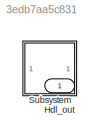
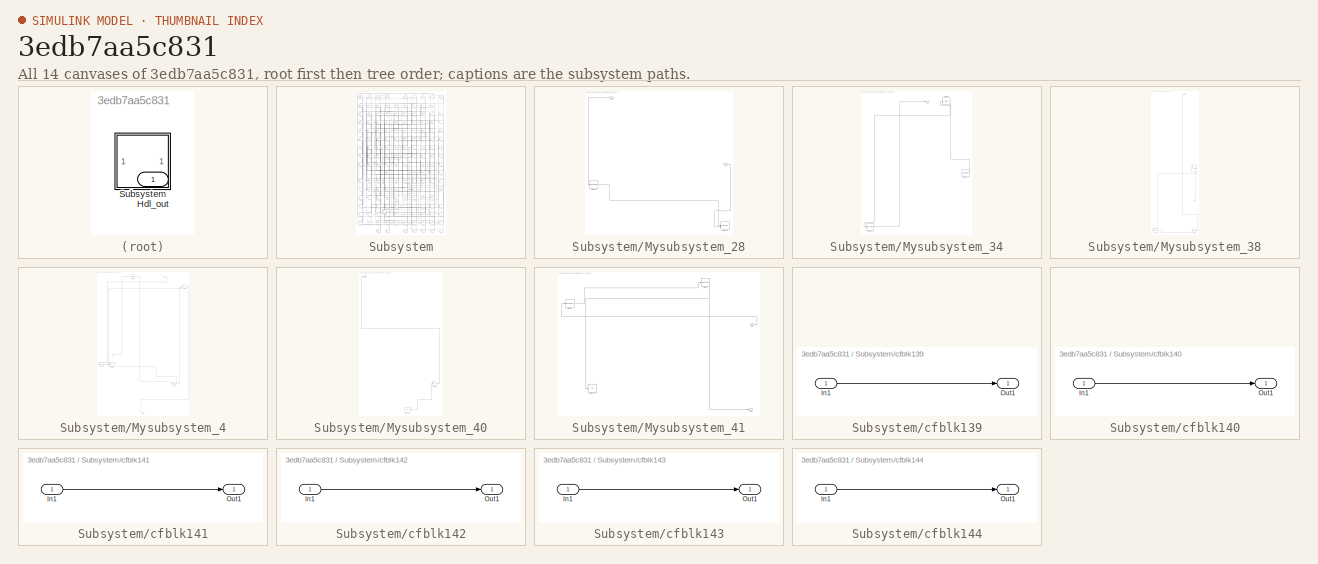
[diagram: thumbnail index - all 14 canvases of the model, root first then tree order]
MODEL slx_3edb7aa5c831
KIND model
CONFIG AbsTol = auto
CONFIG EnableMultiTasking = off
CONFIG FixedStep = auto
CONFIG MaxStep = auto
CONFIG MinStep = auto
CONFIG RelTol = 1e-3
CONFIG SampleTimeConstraint = Unconstrained
CONFIG SolverName = VariableStepAuto
CONFIG StartTime = 0.0
CONFIG StopTime = 10.0
BLOCK [Outport] Hdl_out
  OutDataTypeStr = uint8
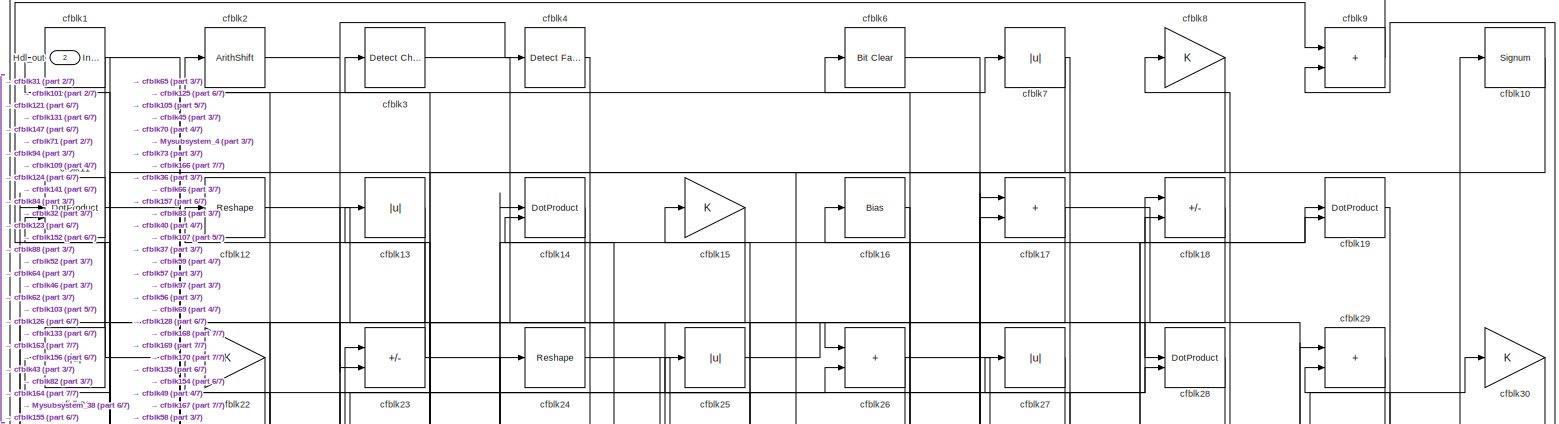
[diagram: Subsystem - part 1/7, full width, top band]
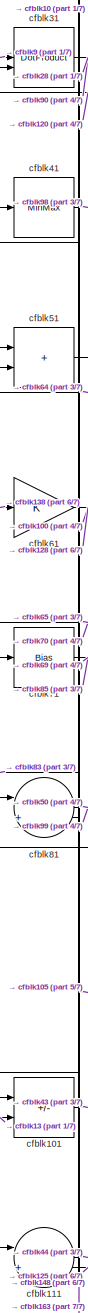
[diagram: Subsystem - part 2/7, middle left region]
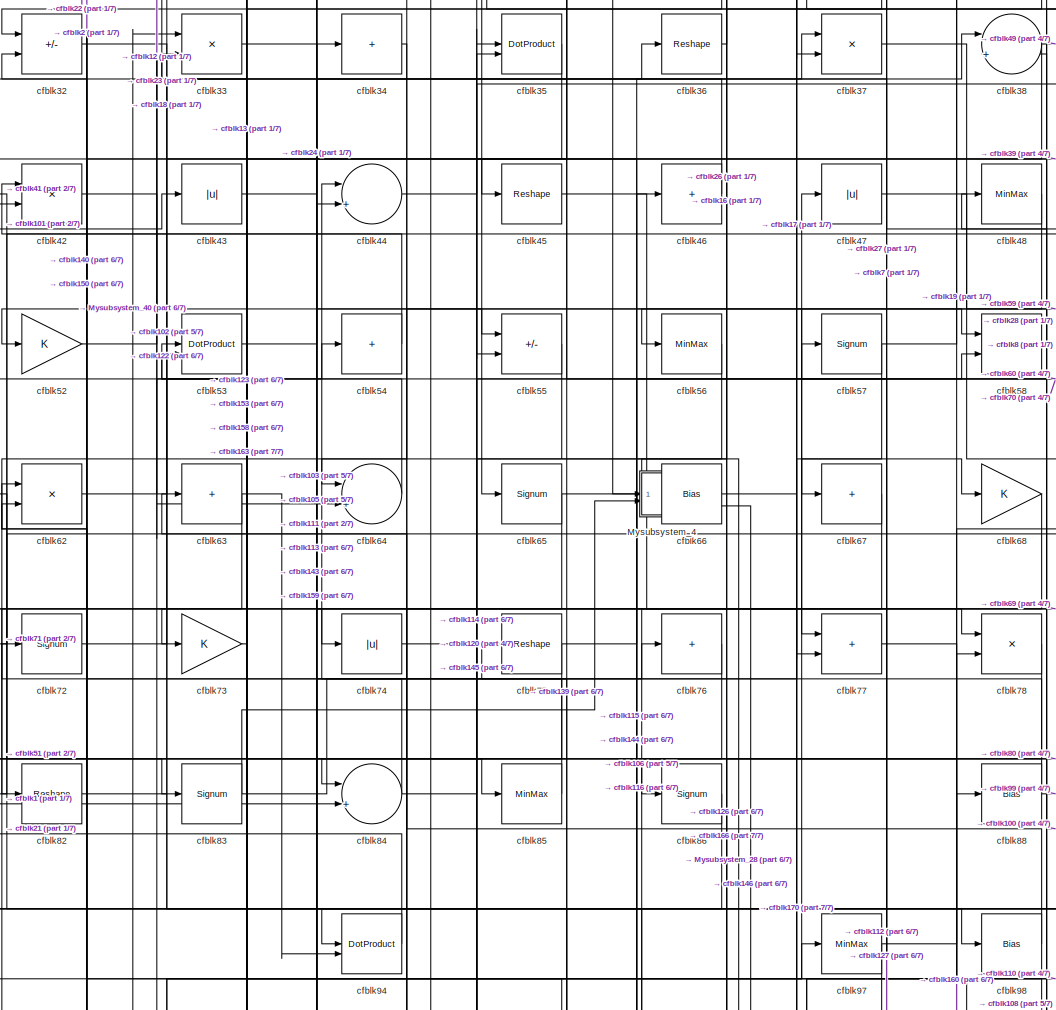
[diagram: Subsystem - part 3/7, central region]
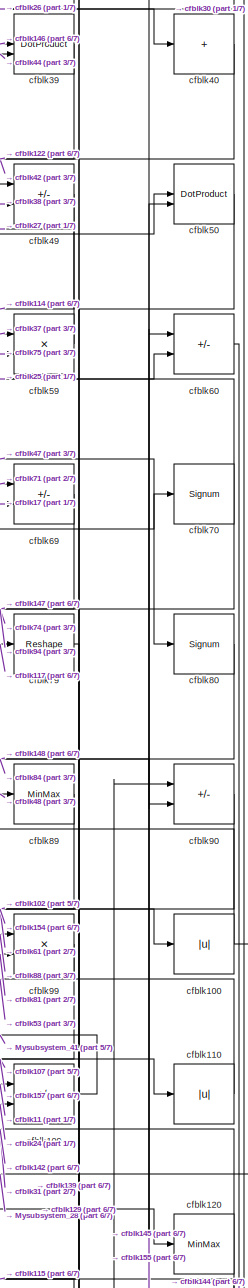
[diagram: Subsystem - part 4/7, middle right region]
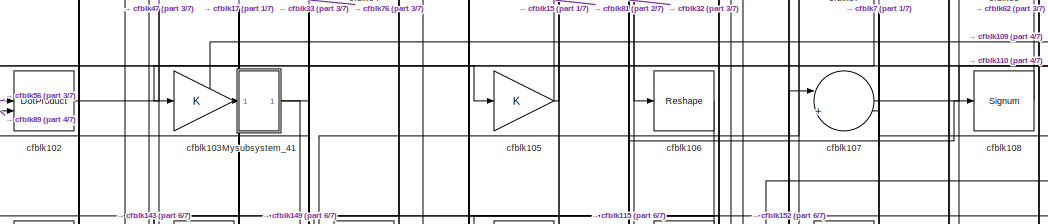
[diagram: Subsystem - part 5/7, central region]
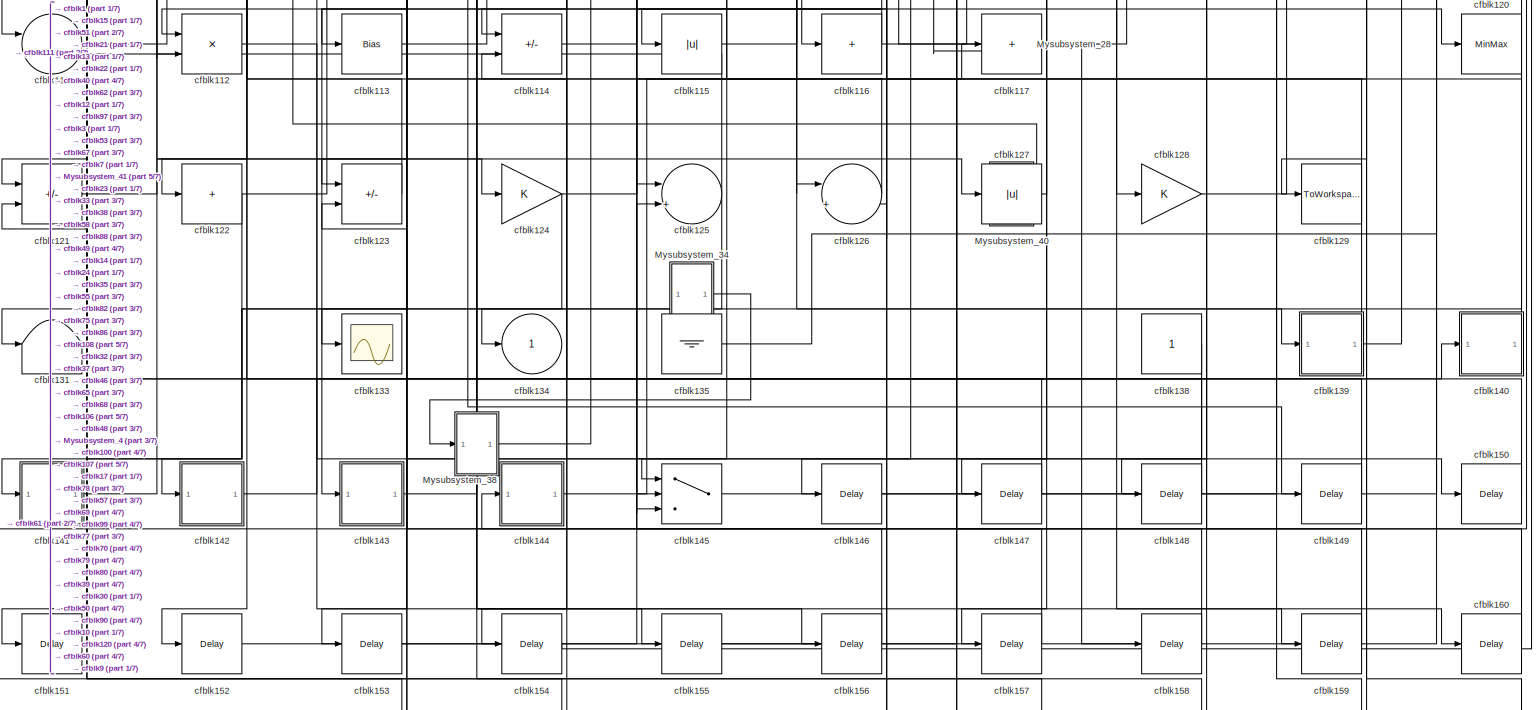
[diagram: Subsystem - part 6/7, full width, bottom band]
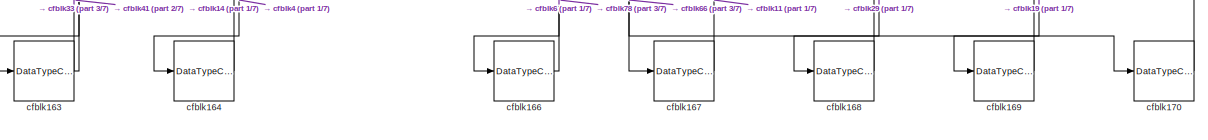
[diagram: Subsystem - part 7/7, full width, bottom band]
BLOCK [SubSystem] Subsystem
BLOCK [Outport] Subsystem/Hdl_out
  OutDataTypeStr = uint8
  Port = 2
BLOCK [SubSystem] Subsystem/Mysubsystem_28
  RTWFcnName = Mysubsystem_28
  RTWFcnNameOpts = User specified
  RTWFileNameOpts = Use function name
  RTWSystemCode = Reusable function
  TreatAsAtomicUnit = on
BLOCK [Inport] Subsystem/Mysubsystem_28/In1
BLOCK [Inport] Subsystem/Mysubsystem_28/In2
  Port = 2
BLOCK [Reshape] Subsystem/Mysubsystem_28/cfblk104
BLOCK [Record] Subsystem/Mysubsystem_28/cfblk130
  CompatibilityTag = XY
  FileSettingsInternal = {"entries":[{"content":{"excelSettings":{"content":{},"type":"Streamout.ExcelSettings"}},"type":"Streamout.FileSettingStorage","uuid":""}],"packageUris":["http:\/\/schema.mathworks.com\/mf0\/streamout_blocks\/R2020a"],"version":"1.0"}
  Layout = [1 1]
  SignalsInternal = {"entries":[{"content":{},"type":"RecordBlkView.InputSignals","uuid":""}],"packageUris":["http:\/\/schema.mathworks.com\/mf0\/streamout_blocks\/R2020a"],"version":"1.0"}
  VisualizationBindings = {"xyplotplugin":{"info":[{"series":[],"subplotID":1}]}}
  st = -1
BLOCK [SubSystem] Subsystem/Mysubsystem_34
  RTWFcnName = Mysubsystem_34
  RTWFcnNameOpts = User specified
  RTWFileNameOpts = Use function name
  RTWSystemCode = Reusable function
  TreatAsAtomicUnit = on
BLOCK [Outport] Subsystem/Mysubsystem_34/Out1
BLOCK [Reference] Subsystem/Mysubsystem_34/cfblk137  REF=hdlsllib/Sources/Counter
Limited
  SourceBlock = hdlsllib/Sources/Counter\nLimited
  SourceType = Counter Limited
BLOCK [DataTypeConversion] Subsystem/Mysubsystem_34/cfblk162
  OutDataTypeStr = uint8
  RndMeth = Floor
  SaturateOnIntegerOverflow = off
BLOCK [Bias] Subsystem/Mysubsystem_34/cfblk96
  Bias = 0.0
  SaturateOnIntegerOverflow = off
BLOCK [SubSystem] Subsystem/Mysubsystem_38
  RTWFcnName = Mysubsystem_38
  RTWFcnNameOpts = User specified
  RTWFileNameOpts = Use function name
  RTWSystemCode = Reusable function
  TreatAsAtomicUnit = on
BLOCK [Inport] Subsystem/Mysubsystem_38/In1
BLOCK [Outport] Subsystem/Mysubsystem_38/Out1
BLOCK [DataTypeConversion] Subsystem/Mysubsystem_38/cfblk161
  OutDataTypeStr = uint8
  RndMeth = Floor
  SaturateOnIntegerOverflow = off
BLOCK [DataTypeConversion] Subsystem/Mysubsystem_38/cfblk165
  OutDataTypeStr = uint8
  RndMeth = Floor
  SaturateOnIntegerOverflow = off
BLOCK [Sum] Subsystem/Mysubsystem_38/cfblk95
  IconShape = rectangular
  Inputs = +
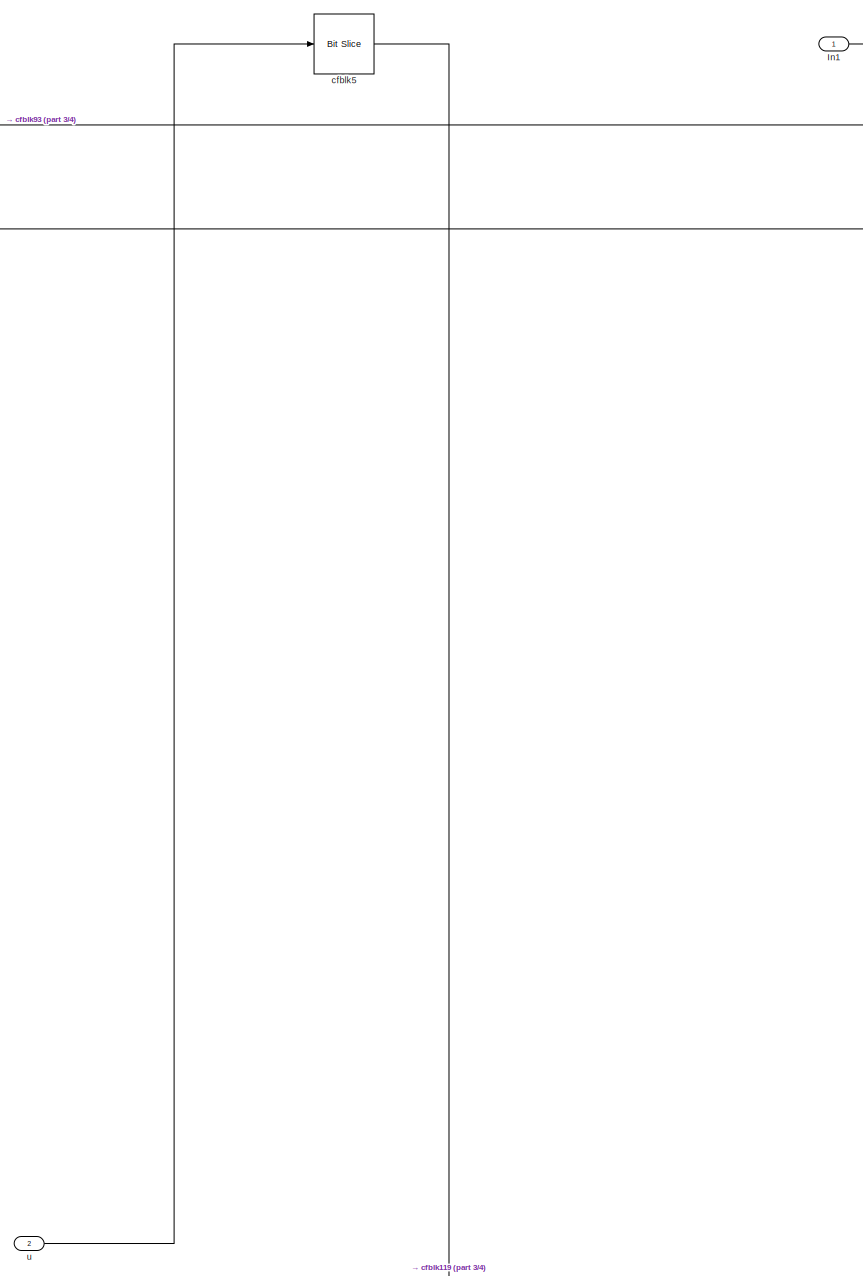
[diagram: Subsystem/Mysubsystem_4 - part 1/4, top center region]
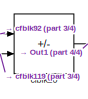
[diagram: Subsystem/Mysubsystem_4 - part 2/4, top right region]
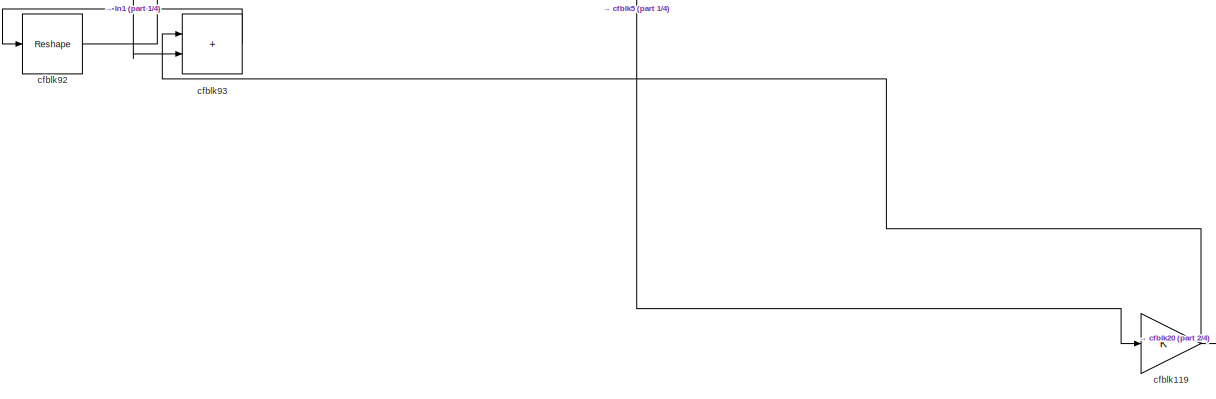
[diagram: Subsystem/Mysubsystem_4 - part 3/4, full width, bottom band]
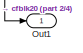
[diagram: Subsystem/Mysubsystem_4 - part 4/4, bottom center region]
BLOCK [SubSystem] Subsystem/Mysubsystem_4
  RTWFcnName = Mysubsystem_4
  RTWFcnNameOpts = User specified
  RTWFileNameOpts = Use function name
  RTWSystemCode = Reusable function
  TreatAsAtomicUnit = on
BLOCK [Inport] Subsystem/Mysubsystem_4/In1
BLOCK [Outport] Subsystem/Mysubsystem_4/Out1
BLOCK [Gain] Subsystem/Mysubsystem_4/cfblk119
BLOCK [Sum] Subsystem/Mysubsystem_4/cfblk20
  IconShape = rectangular
  Inputs = +-
BLOCK [Reference] Subsystem/Mysubsystem_4/cfblk5  REF=hdlsllib/Logic and Bit
Operations/Bit Slice
  SourceBlock = hdlsllib/Logic and Bit\nOperations/Bit Slice
  SourceType = Bit Slice
BLOCK [Reshape] Subsystem/Mysubsystem_4/cfblk92
BLOCK [Sum] Subsystem/Mysubsystem_4/cfblk93
  IconShape = rectangular
BLOCK [Inport] Subsystem/Mysubsystem_4/u
  Port = 2
BLOCK [SubSystem] Subsystem/Mysubsystem_40
  RTWFcnName = Mysubsystem_40
  RTWFcnNameOpts = User specified
  RTWFileNameOpts = Use function name
  RTWSystemCode = Reusable function
  TreatAsAtomicUnit = on
BLOCK [Outport] Subsystem/Mysubsystem_40/Out1
BLOCK [Gain] Subsystem/Mysubsystem_40/cfblk118
BLOCK [Ground] Subsystem/Mysubsystem_40/cfblk136
BLOCK [SubSystem] Subsystem/Mysubsystem_41
  RTWFcnName = Mysubsystem_41
  RTWFcnNameOpts = User specified
  RTWFileNameOpts = Use function name
  RTWSystemCode = Reusable function
  TreatAsAtomicUnit = on
BLOCK [Inport] Subsystem/Mysubsystem_41/In1
BLOCK [Outport] Subsystem/Mysubsystem_41/Out1
BLOCK [Display] Subsystem/Mysubsystem_41/cfblk132
  Decimation = 1
BLOCK [Reshape] Subsystem/Mysubsystem_41/cfblk87
BLOCK [Reshape] Subsystem/Mysubsystem_41/cfblk91
BLOCK [Reference] Subsystem/cfblk1  REF=simulink/Logic and Bit
Operations/Detect
Increase
  LibrarySourceBlock = hdlsllib/Logic and Bit\nOperations/Detect\nIncrease
  SourceBlock = simulink/Logic and Bit\nOperations/Detect\nIncrease
  SourceType = Detect Increase
BLOCK [Signum] Subsystem/cfblk10
BLOCK [Abs] Subsystem/cfblk100
  OutDataTypeStr = uint8
  SaturateOnIntegerOverflow = off
BLOCK [Sum] Subsystem/cfblk101
  IconShape = rectangular
  Inputs = +-
  OutDataTypeStr = uint8
BLOCK [DotProduct] Subsystem/cfblk102
  OutDataTypeStr = uint8
BLOCK [Gain] Subsystem/cfblk103
  OutDataTypeStr = uint8
BLOCK [Gain] Subsystem/cfblk105
  OutDataTypeStr = uint8
BLOCK [Reshape] Subsystem/cfblk106
BLOCK [Sum] Subsystem/cfblk107
  Inputs = |++
  OutDataTypeStr = uint8
BLOCK [Signum] Subsystem/cfblk108
BLOCK [Sum] Subsystem/cfblk109
  IconShape = rectangular
  Inputs = +-
  OutDataTypeStr = uint8
BLOCK [DotProduct] Subsystem/cfblk11
  OutDataTypeStr = uint8
BLOCK [Abs] Subsystem/cfblk110
  OutDataTypeStr = uint8
  SaturateOnIntegerOverflow = off
BLOCK [Sum] Subsystem/cfblk111
  Inputs = |++
  OutDataTypeStr = uint8
BLOCK [Product] Subsystem/cfblk112
  Inputs = */
  OutDataTypeStr = uint8
  RndMeth = Zero
  SaturateOnIntegerOverflow = on
BLOCK [Bias] Subsystem/cfblk113
  Bias = 0.0
  SaturateOnIntegerOverflow = off
BLOCK [Sum] Subsystem/cfblk114
  IconShape = rectangular
  Inputs = +-
  OutDataTypeStr = uint8
BLOCK [Abs] Subsystem/cfblk115
  OutDataTypeStr = uint8
  SaturateOnIntegerOverflow = off
BLOCK [Sum] Subsystem/cfblk116
  IconShape = rectangular
  Inputs = +
  OutDataTypeStr = uint8
BLOCK [Sum] Subsystem/cfblk117
  IconShape = rectangular
  Inputs = +
  OutDataTypeStr = uint8
BLOCK [Reshape] Subsystem/cfblk12
BLOCK [MinMax] Subsystem/cfblk120
  OutDataTypeStr = uint8
BLOCK [Sum] Subsystem/cfblk121
  IconShape = rectangular
  Inputs = +-
  OutDataTypeStr = uint8
BLOCK [Sum] Subsystem/cfblk122
  IconShape = rectangular
  Inputs = +
  OutDataTypeStr = uint8
BLOCK [Sum] Subsystem/cfblk123
  IconShape = rectangular
  Inputs = +-
  OutDataTypeStr = uint8
BLOCK [Gain] Subsystem/cfblk124
  OutDataTypeStr = uint8
BLOCK [Sum] Subsystem/cfblk125
  Inputs = |++
  OutDataTypeStr = uint8
BLOCK [Sum] Subsystem/cfblk126
  Inputs = |++
  OutDataTypeStr = uint8
BLOCK [Abs] Subsystem/cfblk127
  OutDataTypeStr = uint8
  SaturateOnIntegerOverflow = off
BLOCK [Gain] Subsystem/cfblk128
  OutDataTypeStr = uint8
BLOCK [ToWorkspace] Subsystem/cfblk129
  MaxDataPoints = inf
  SampleTime = -1
  SaveFormat = Timeseries
  VariableName = simout
BLOCK [Abs] Subsystem/cfblk13
  OutDataTypeStr = uint8
  SaturateOnIntegerOverflow = off
BLOCK [Terminator] Subsystem/cfblk131
BLOCK [Scope] Subsystem/cfblk133
  Floating = off
  NumInputPorts = 1
  ScopeSpecificationString = Simulink.scopes.TimeScopeBlockCfg('CurrentConfiguration', extmgr.ConfigurationSet(extmgr.Configuration('Core','General UI',true),extmgr.Configuration('Core','Source UI',true),extmgr.Configuration('Sources','WiredSimulink',true,'DataLoggingSaveFormat','Array','DataLoggingLimitDataPoints',true,'DataLoggingDecimation','1'),extmgr.Configuration('Visuals','Time Domain',true,'DisplayPropertyDefaults',st...<+829ch>
BLOCK [Outport] Subsystem/cfblk134
  OutDataTypeStr = uint8
  VectorParamsAs1DForOutWhenUnconnected = off
BLOCK [Ground] Subsystem/cfblk135
BLOCK [Constant] Subsystem/cfblk138
  OutDataTypeStr = uint8
  SampleTime = -1
BLOCK [SubSystem] Subsystem/cfblk139
  LibrarySourceBlock = hdlsllib/Ports &\nSubsystems/Subsystem
BLOCK [Inport] Subsystem/cfblk139/In1
BLOCK [Outport] Subsystem/cfblk139/Out1
BLOCK [DotProduct] Subsystem/cfblk14
  OutDataTypeStr = uint8
BLOCK [SubSystem] Subsystem/cfblk140
  LibrarySourceBlock = hdlsllib/Ports &\nSubsystems/Subsystem
BLOCK [Inport] Subsystem/cfblk140/In1
BLOCK [Outport] Subsystem/cfblk140/Out1
BLOCK [SubSystem] Subsystem/cfblk141
  LibrarySourceBlock = hdlsllib/Ports &\nSubsystems/Subsystem
BLOCK [Inport] Subsystem/cfblk141/In1
BLOCK [Outport] Subsystem/cfblk141/Out1
BLOCK [SubSystem] Subsystem/cfblk142
  LibrarySourceBlock = hdlsllib/Ports &\nSubsystems/Subsystem
BLOCK [Inport] Subsystem/cfblk142/In1
BLOCK [Outport] Subsystem/cfblk142/Out1
BLOCK [SubSystem] Subsystem/cfblk143
  LibrarySourceBlock = hdlsllib/Ports &\nSubsystems/Subsystem
BLOCK [Inport] Subsystem/cfblk143/In1
BLOCK [Outport] Subsystem/cfblk143/Out1
BLOCK [SubSystem] Subsystem/cfblk144
  LibrarySourceBlock = hdlsllib/Ports &\nSubsystems/Subsystem
BLOCK [Inport] Subsystem/cfblk144/In1
BLOCK [Outport] Subsystem/cfblk144/Out1
BLOCK [Switch] Subsystem/cfblk145
  InputSameDT = off
  OutDataTypeStr = uint8
  SaturateOnIntegerOverflow = off
BLOCK [Delay] Subsystem/cfblk146
  InputPortMap = u0
  SampleTime = 1
BLOCK [Delay] Subsystem/cfblk147
  InputPortMap = u0
  SampleTime = 1
BLOCK [Delay] Subsystem/cfblk148
  InputPortMap = u0
  SampleTime = 1
BLOCK [Delay] Subsystem/cfblk149
  InputPortMap = u0
  SampleTime = 1
BLOCK [Gain] Subsystem/cfblk15
  OutDataTypeStr = uint8
BLOCK [Delay] Subsystem/cfblk150
  InputPortMap = u0
  SampleTime = 1
BLOCK [Delay] Subsystem/cfblk151
  InputPortMap = u0
  SampleTime = 1
BLOCK [Delay] Subsystem/cfblk152
  InputPortMap = u0
  SampleTime = 1
BLOCK [Delay] Subsystem/cfblk153
  InputPortMap = u0
  SampleTime = 1
BLOCK [Delay] Subsystem/cfblk154
  InputPortMap = u0
  SampleTime = 1
BLOCK [Delay] Subsystem/cfblk155
  InputPortMap = u0
  SampleTime = 1
BLOCK [Delay] Subsystem/cfblk156
  InputPortMap = u0
  SampleTime = 1
BLOCK [Delay] Subsystem/cfblk157
  InputPortMap = u0
  SampleTime = 1
BLOCK [Delay] Subsystem/cfblk158
  InputPortMap = u0
  SampleTime = 1
BLOCK [Delay] Subsystem/cfblk159
  InputPortMap = u0
  SampleTime = 1
BLOCK [Bias] Subsystem/cfblk16
  Bias = 0.0
  SaturateOnIntegerOverflow = off
BLOCK [Delay] Subsystem/cfblk160
  InputPortMap = u0
  SampleTime = 1
BLOCK [DataTypeConversion] Subsystem/cfblk163
  OutDataTypeStr = uint8
  RndMeth = Floor
  SaturateOnIntegerOverflow = off
BLOCK [DataTypeConversion] Subsystem/cfblk164
  OutDataTypeStr = uint8
  RndMeth = Floor
  SaturateOnIntegerOverflow = off
BLOCK [DataTypeConversion] Subsystem/cfblk166
  OutDataTypeStr = uint8
  RndMeth = Floor
  SaturateOnIntegerOverflow = off
BLOCK [DataTypeConversion] Subsystem/cfblk167
  OutDataTypeStr = uint8
  RndMeth = Floor
  SaturateOnIntegerOverflow = off
BLOCK [DataTypeConversion] Subsystem/cfblk168
  OutDataTypeStr = uint8
  RndMeth = Floor
  SaturateOnIntegerOverflow = off
BLOCK [DataTypeConversion] Subsystem/cfblk169
  OutDataTypeStr = uint8
  RndMeth = Floor
  SaturateOnIntegerOverflow = off
BLOCK [Sum] Subsystem/cfblk17
  IconShape = rectangular
  OutDataTypeStr = uint8
BLOCK [DataTypeConversion] Subsystem/cfblk170
  OutDataTypeStr = uint8
  RndMeth = Floor
  SaturateOnIntegerOverflow = off
BLOCK [Sum] Subsystem/cfblk18
  IconShape = rectangular
  Inputs = +-
  OutDataTypeStr = uint8
BLOCK [DotProduct] Subsystem/cfblk19
  OutDataTypeStr = uint8
BLOCK [ArithShift] Subsystem/cfblk2
  BitShiftNumber = 8
  InputPortMap = u0
BLOCK [Abs] Subsystem/cfblk21
  OutDataTypeStr = uint8
  SaturateOnIntegerOverflow = off
BLOCK [Gain] Subsystem/cfblk22
  OutDataTypeStr = uint8
BLOCK [Sum] Subsystem/cfblk23
  IconShape = rectangular
  Inputs = +-
  OutDataTypeStr = uint8
BLOCK [Reshape] Subsystem/cfblk24
BLOCK [Abs] Subsystem/cfblk25
  OutDataTypeStr = uint8
  SaturateOnIntegerOverflow = off
BLOCK [Sum] Subsystem/cfblk26
  IconShape = rectangular
  OutDataTypeStr = uint8
BLOCK [Abs] Subsystem/cfblk27
  OutDataTypeStr = uint8
  SaturateOnIntegerOverflow = off
BLOCK [DotProduct] Subsystem/cfblk28
  OutDataTypeStr = uint8
BLOCK [Sum] Subsystem/cfblk29
  IconShape = rectangular
  OutDataTypeStr = uint8
BLOCK [Reference] Subsystem/cfblk3  REF=simulink/Logic and Bit
Operations/Detect
Change
  LibrarySourceBlock = hdlsllib/Logic and Bit\nOperations/Detect\nChange
  SourceBlock = simulink/Logic and Bit\nOperations/Detect\nChange
  SourceType = Detect Change
BLOCK [Gain] Subsystem/cfblk30
  OutDataTypeStr = uint8
BLOCK [DotProduct] Subsystem/cfblk31
  OutDataTypeStr = uint8
BLOCK [Sum] Subsystem/cfblk32
  IconShape = rectangular
  Inputs = +-
  OutDataTypeStr = uint8
BLOCK [Product] Subsystem/cfblk33
  Inputs = */
  OutDataTypeStr = uint8
  RndMeth = Zero
  SaturateOnIntegerOverflow = on
BLOCK [Sum] Subsystem/cfblk34
  IconShape = rectangular
  Inputs = +
  OutDataTypeStr = uint8
BLOCK [DotProduct] Subsystem/cfblk35
  OutDataTypeStr = uint8
BLOCK [Reshape] Subsystem/cfblk36
BLOCK [Product] Subsystem/cfblk37
  Inputs = */
  OutDataTypeStr = uint8
  RndMeth = Zero
  SaturateOnIntegerOverflow = on
BLOCK [Sum] Subsystem/cfblk38
  Inputs = |++
  OutDataTypeStr = uint8
BLOCK [DotProduct] Subsystem/cfblk39
  OutDataTypeStr = uint8
BLOCK [Reference] Subsystem/cfblk4  REF=hdlsllib/Logic and Bit
Operations/Detect Fall
Negative
  SourceBlock = hdlsllib/Logic and Bit\nOperations/Detect Fall\nNegative
  SourceType = Detect Fall Negative
BLOCK [Sum] Subsystem/cfblk40
  IconShape = rectangular
  Inputs = +
  OutDataTypeStr = uint8
BLOCK [MinMax] Subsystem/cfblk41
  OutDataTypeStr = uint8
BLOCK [Product] Subsystem/cfblk42
  Inputs = */
  OutDataTypeStr = uint8
  RndMeth = Zero
  SaturateOnIntegerOverflow = on
BLOCK [Abs] Subsystem/cfblk43
  OutDataTypeStr = uint8
  SaturateOnIntegerOverflow = off
BLOCK [Sum] Subsystem/cfblk44
  Inputs = |++
  OutDataTypeStr = uint8
BLOCK [Reshape] Subsystem/cfblk45
BLOCK [Sum] Subsystem/cfblk46
  IconShape = rectangular
  Inputs = +
  OutDataTypeStr = uint8
BLOCK [Abs] Subsystem/cfblk47
  OutDataTypeStr = uint8
  SaturateOnIntegerOverflow = off
BLOCK [MinMax] Subsystem/cfblk48
  OutDataTypeStr = uint8
BLOCK [Sum] Subsystem/cfblk49
  IconShape = rectangular
  Inputs = +-
  OutDataTypeStr = uint8
BLOCK [DotProduct] Subsystem/cfblk50
  OutDataTypeStr = uint8
BLOCK [Sum] Subsystem/cfblk51
  IconShape = rectangular
  OutDataTypeStr = uint8
BLOCK [Gain] Subsystem/cfblk52
  OutDataTypeStr = uint8
BLOCK [DotProduct] Subsystem/cfblk53
  OutDataTypeStr = uint8
BLOCK [Sum] Subsystem/cfblk54
  IconShape = rectangular
  Inputs = +
  OutDataTypeStr = uint8
BLOCK [Sum] Subsystem/cfblk55
  IconShape = rectangular
  Inputs = +-
  OutDataTypeStr = uint8
BLOCK [MinMax] Subsystem/cfblk56
  OutDataTypeStr = uint8
BLOCK [Signum] Subsystem/cfblk57
BLOCK [Sum] Subsystem/cfblk58
  IconShape = rectangular
  OutDataTypeStr = uint8
BLOCK [Product] Subsystem/cfblk59
  Inputs = */
  OutDataTypeStr = uint8
  RndMeth = Zero
  SaturateOnIntegerOverflow = on
BLOCK [Reference] Subsystem/cfblk6  REF=simulink/Logic and Bit
Operations/Bit Clear
  LibrarySourceBlock = hdlsllib/Logic and Bit\nOperations/Bit Clear
  SourceBlock = simulink/Logic and Bit\nOperations/Bit Clear
  SourceType = Bit Clear
BLOCK [Sum] Subsystem/cfblk60
  IconShape = rectangular
  Inputs = +-
  OutDataTypeStr = uint8
BLOCK [Gain] Subsystem/cfblk61
  OutDataTypeStr = uint8
BLOCK [Product] Subsystem/cfblk62
  Inputs = */
  OutDataTypeStr = uint8
  RndMeth = Zero
  SaturateOnIntegerOverflow = on
BLOCK [Sum] Subsystem/cfblk63
  IconShape = rectangular
  Inputs = +
  OutDataTypeStr = uint8
BLOCK [Sum] Subsystem/cfblk64
  Inputs = |++
  OutDataTypeStr = uint8
BLOCK [Signum] Subsystem/cfblk65
BLOCK [Bias] Subsystem/cfblk66
  Bias = 0.0
  SaturateOnIntegerOverflow = off
BLOCK [Sum] Subsystem/cfblk67
  IconShape = rectangular
  Inputs = +
  OutDataTypeStr = uint8
BLOCK [Gain] Subsystem/cfblk68
  OutDataTypeStr = uint8
BLOCK [Sum] Subsystem/cfblk69
  IconShape = rectangular
  Inputs = +-
  OutDataTypeStr = uint8
BLOCK [Abs] Subsystem/cfblk7
  OutDataTypeStr = uint8
  SaturateOnIntegerOverflow = off
BLOCK [Signum] Subsystem/cfblk70
BLOCK [Bias] Subsystem/cfblk71
  Bias = 0.0
  SaturateOnIntegerOverflow = off
BLOCK [Signum] Subsystem/cfblk72
BLOCK [Gain] Subsystem/cfblk73
  OutDataTypeStr = uint8
BLOCK [Abs] Subsystem/cfblk74
  OutDataTypeStr = uint8
  SaturateOnIntegerOverflow = off
BLOCK [Reshape] Subsystem/cfblk75
BLOCK [Sum] Subsystem/cfblk76
  IconShape = rectangular
  Inputs = +
  OutDataTypeStr = uint8
BLOCK [Sum] Subsystem/cfblk77
  IconShape = rectangular
  OutDataTypeStr = uint8
BLOCK [Product] Subsystem/cfblk78
  Inputs = */
  OutDataTypeStr = uint8
  RndMeth = Zero
  SaturateOnIntegerOverflow = on
BLOCK [Reshape] Subsystem/cfblk79
BLOCK [Gain] Subsystem/cfblk8
  OutDataTypeStr = uint8
BLOCK [Signum] Subsystem/cfblk80
BLOCK [Sum] Subsystem/cfblk81
  Inputs = |++
  OutDataTypeStr = uint8
BLOCK [Reshape] Subsystem/cfblk82
BLOCK [Signum] Subsystem/cfblk83
BLOCK [Sum] Subsystem/cfblk84
  Inputs = |++
  OutDataTypeStr = uint8
BLOCK [MinMax] Subsystem/cfblk85
  OutDataTypeStr = uint8
BLOCK [Signum] Subsystem/cfblk86
BLOCK [Bias] Subsystem/cfblk88
  Bias = 0.0
  SaturateOnIntegerOverflow = off
BLOCK [MinMax] Subsystem/cfblk89
  OutDataTypeStr = uint8
BLOCK [Sum] Subsystem/cfblk9
  IconShape = rectangular
  OutDataTypeStr = uint8
BLOCK [Sum] Subsystem/cfblk90
  IconShape = rectangular
  Inputs = +-
  OutDataTypeStr = uint8
BLOCK [DotProduct] Subsystem/cfblk94
  OutDataTypeStr = uint8
BLOCK [MinMax] Subsystem/cfblk97
  OutDataTypeStr = uint8
BLOCK [Bias] Subsystem/cfblk98
  Bias = 0.0
  SaturateOnIntegerOverflow = off
BLOCK [Product] Subsystem/cfblk99
  Inputs = */
  OutDataTypeStr = uint8
  RndMeth = Zero
  SaturateOnIntegerOverflow = on
LINE Subsystem/Mysubsystem_28/In1:1 -> Subsystem/Mysubsystem_28/cfblk104:1
LINE Subsystem/Mysubsystem_28/In2:1 -> Subsystem/Mysubsystem_28/cfblk130:2
LINE Subsystem/Mysubsystem_28/cfblk104:1 -> Subsystem/Mysubsystem_28/cfblk130:1
LINE Subsystem/Mysubsystem_34/cfblk137:1 -> Subsystem/Mysubsystem_34/cfblk96:1
LINE Subsystem/Mysubsystem_34/cfblk162:1 -> Subsystem/Mysubsystem_34/Out1:1
LINE Subsystem/Mysubsystem_34/cfblk96:1 -> Subsystem/Mysubsystem_34/cfblk162:1
LINE Subsystem/Mysubsystem_34:1 -> Subsystem/Mysubsystem_38:1
LINE Subsystem/Mysubsystem_38/In1:1 -> Subsystem/Mysubsystem_38/cfblk95:1
LINE Subsystem/Mysubsystem_38/cfblk161:1 -> Subsystem/Mysubsystem_38/cfblk165:1
LINE Subsystem/Mysubsystem_38/cfblk165:1 -> Subsystem/Mysubsystem_38/Out1:1
LINE Subsystem/Mysubsystem_38/cfblk95:1 -> Subsystem/Mysubsystem_38/cfblk161:1
LINE Subsystem/Mysubsystem_38:1 -> Subsystem/cfblk14:2
LINE Subsystem/Mysubsystem_4/In1:1 -> Subsystem/Mysubsystem_4/cfblk93:2
NET Subsystem/Mysubsystem_4/cfblk119:1 -> Subsystem/Mysubsystem_4/cfblk20:2, Subsystem/Mysubsystem_4/cfblk93:1
LINE Subsystem/Mysubsystem_4/cfblk20:1 -> Subsystem/Mysubsystem_4/Out1:1
LINE Subsystem/Mysubsystem_4/cfblk5:1 -> Subsystem/Mysubsystem_4/cfblk119:1
LINE Subsystem/Mysubsystem_4/cfblk92:1 -> Subsystem/Mysubsystem_4/cfblk20:1
LINE Subsystem/Mysubsystem_4/cfblk93:1 -> Subsystem/Mysubsystem_4/cfblk92:1
LINE Subsystem/Mysubsystem_4/u:1 -> Subsystem/Mysubsystem_4/cfblk5:1
LINE Subsystem/Mysubsystem_40/cfblk118:1 -> Subsystem/Mysubsystem_40/Out1:1
LINE Subsystem/Mysubsystem_40/cfblk136:1 -> Subsystem/Mysubsystem_40/cfblk118:1
LINE Subsystem/Mysubsystem_40:1 -> Subsystem/cfblk33:1
LINE Subsystem/Mysubsystem_41/In1:1 -> Subsystem/Mysubsystem_41/cfblk91:1
NET Subsystem/Mysubsystem_41/cfblk87:1 -> Subsystem/Mysubsystem_41/Out1:1, Subsystem/Mysubsystem_41/cfblk132:1
LINE Subsystem/Mysubsystem_41/cfblk91:1 -> Subsystem/Mysubsystem_41/cfblk87:1
LINE Subsystem/Mysubsystem_41:1 -> Subsystem/cfblk149:1
LINE Subsystem/Mysubsystem_4:1 -> Subsystem/cfblk146:1
NET Subsystem/cfblk100:1 -> Subsystem/Mysubsystem_28:2, Subsystem/cfblk48:1, Subsystem/cfblk89:1
LINE Subsystem/cfblk101:1 -> Subsystem/cfblk43:1
LINE Subsystem/cfblk102:1 -> Subsystem/cfblk47:1
LINE Subsystem/cfblk103:1 -> Subsystem/cfblk76:1
NET Subsystem/cfblk105:1 -> Subsystem/cfblk15:1, Subsystem/cfblk81:1
LINE Subsystem/cfblk106:1 -> Subsystem/cfblk143:1
LINE Subsystem/cfblk107:1 -> Subsystem/cfblk110:1
LINE Subsystem/cfblk108:1 -> Subsystem/cfblk62:2
LINE Subsystem/cfblk109:1 -> Subsystem/Mysubsystem_41:1
LINE Subsystem/cfblk10:1 -> Subsystem/cfblk71:1
LINE Subsystem/cfblk110:1 -> Subsystem/cfblk53:1
LINE Subsystem/cfblk111:1 -> Subsystem/cfblk44:2
LINE Subsystem/cfblk112:1 -> Subsystem/cfblk150:1
NET Subsystem/cfblk113:1 -> Subsystem/cfblk58:2, Subsystem/cfblk88:1
LINE Subsystem/cfblk114:1 -> Subsystem/cfblk35:2
NET Subsystem/cfblk115:1 -> Subsystem/cfblk108:1, Subsystem/cfblk37:1
NET Subsystem/cfblk116:1 -> Subsystem/cfblk112:1, Subsystem/cfblk78:2
NET Subsystem/cfblk117:1 -> Subsystem/cfblk158:1, Subsystem/cfblk70:1, Subsystem/cfblk79:1
LINE Subsystem/cfblk11:1 -> Subsystem/cfblk109:1
NET Subsystem/cfblk120:1 -> Subsystem/cfblk142:1, Subsystem/cfblk31:2
LINE Subsystem/cfblk121:1 -> Subsystem/cfblk127:1
NET Subsystem/cfblk122:1 -> Subsystem/cfblk151:1, Subsystem/cfblk97:1
LINE Subsystem/cfblk123:1 -> Subsystem/cfblk22:1
NET Subsystem/cfblk124:1 -> Subsystem/cfblk117:1, Subsystem/cfblk134:1
NET Subsystem/cfblk125:1 -> Subsystem/cfblk111:2, Subsystem/cfblk141:1
LINE Subsystem/cfblk126:1 -> Subsystem/cfblk3:1
LINE Subsystem/cfblk127:1 -> Subsystem/cfblk57:1
LINE Subsystem/cfblk128:1 -> Subsystem/cfblk30:1
NET Subsystem/cfblk12:1 -> Subsystem/cfblk155:1, Subsystem/cfblk65:1
LINE Subsystem/cfblk135:1 -> Subsystem/cfblk10:1
LINE Subsystem/cfblk138:1 -> Subsystem/cfblk61:1
LINE Subsystem/cfblk139/In1:1 -> Subsystem/cfblk139/Out1:1
NET Subsystem/cfblk139:1 -> Subsystem/cfblk75:1, Subsystem/cfblk90:1
NET Subsystem/cfblk13:1 -> Subsystem/cfblk101:2, Subsystem/cfblk152:1
LINE Subsystem/cfblk140/In1:1 -> Subsystem/cfblk140/Out1:1
LINE Subsystem/cfblk140:1 -> Subsystem/cfblk62:1
LINE Subsystem/cfblk141/In1:1 -> Subsystem/cfblk141/Out1:1
LINE Subsystem/cfblk141:1 -> Subsystem/cfblk7:1
LINE Subsystem/cfblk142/In1:1 -> Subsystem/cfblk142/Out1:1
LINE Subsystem/cfblk142:1 -> Subsystem/cfblk140:1
LINE Subsystem/cfblk143/In1:1 -> Subsystem/cfblk143/Out1:1
LINE Subsystem/cfblk143:1 -> Subsystem/cfblk38:1
LINE Subsystem/cfblk144/In1:1 -> Subsystem/cfblk144/Out1:1
LINE Subsystem/cfblk144:1 -> Subsystem/cfblk46:1
LINE Subsystem/cfblk145:1 -> Subsystem/cfblk50:2
LINE Subsystem/cfblk146:1 -> Subsystem/cfblk39:1
LINE Subsystem/cfblk147:1 -> Subsystem/cfblk1:1
LINE Subsystem/cfblk148:1 -> Subsystem/cfblk51:2
LINE Subsystem/cfblk149:1 -> Subsystem/cfblk114:2
LINE Subsystem/cfblk14:1 -> Subsystem/cfblk163:1
LINE Subsystem/cfblk150:1 -> Subsystem/cfblk32:2
LINE Subsystem/cfblk151:1 -> Subsystem/cfblk121:2
LINE Subsystem/cfblk152:1 -> Subsystem/cfblk107:1
LINE Subsystem/cfblk153:1 -> Subsystem/cfblk125:2
LINE Subsystem/cfblk154:1 -> Subsystem/cfblk9:2
LINE Subsystem/cfblk155:1 -> Subsystem/cfblk60:1
LINE Subsystem/cfblk156:1 -> Subsystem/cfblk123:2
LINE Subsystem/cfblk157:1 -> Subsystem/cfblk17:1
LINE Subsystem/cfblk158:1 -> Subsystem/cfblk53:2
LINE Subsystem/cfblk159:1 -> Subsystem/cfblk38:2
NET Subsystem/cfblk15:1 -> Subsystem/cfblk131:1, Subsystem/cfblk23:2
LINE Subsystem/cfblk160:1 -> Subsystem/cfblk35:1
NET Subsystem/cfblk163:1 -> Subsystem/cfblk33:2, Subsystem/cfblk41:1
LINE Subsystem/cfblk164:1 -> Subsystem/cfblk14:1
LINE Subsystem/cfblk166:1 -> Subsystem/cfblk6:1
LINE Subsystem/cfblk167:1 -> Subsystem/cfblk11:2
LINE Subsystem/cfblk168:1 -> Subsystem/cfblk11:1
LINE Subsystem/cfblk169:1 -> Subsystem/cfblk29:1
LINE Subsystem/cfblk16:1 -> Subsystem/cfblk66:1
LINE Subsystem/cfblk170:1 -> Subsystem/cfblk29:2
NET Subsystem/cfblk17:1 -> Subsystem/cfblk103:1, Subsystem/cfblk69:2
LINE Subsystem/cfblk18:1 -> Subsystem/cfblk45:1
LINE Subsystem/cfblk19:1 -> Subsystem/cfblk169:1
NET Subsystem/cfblk1:1 -> Subsystem/cfblk121:1, Subsystem/cfblk84:2
NET Subsystem/cfblk21:1 -> Subsystem/Hdl_out:1, Subsystem/cfblk124:1, Subsystem/cfblk9:1
LINE Subsystem/cfblk22:1 -> Subsystem/cfblk32:1
NET Subsystem/cfblk23:1 -> Subsystem/cfblk12:1, Subsystem/cfblk156:1
NET Subsystem/cfblk24:1 -> Subsystem/cfblk109:2, Subsystem/cfblk125:1
LINE Subsystem/cfblk25:1 -> Subsystem/cfblk28:1
NET Subsystem/cfblk26:1 -> Subsystem/cfblk40:1, Subsystem/cfblk73:1
LINE Subsystem/cfblk27:1 -> Subsystem/cfblk52:1
LINE Subsystem/cfblk28:1 -> Subsystem/cfblk56:1
LINE Subsystem/cfblk29:1 -> Subsystem/cfblk168:1
NET Subsystem/cfblk2:1 -> Subsystem/cfblk4:1, Subsystem/cfblk64:2
LINE Subsystem/cfblk30:1 -> Subsystem/cfblk49:1
NET Subsystem/cfblk31:1 -> Subsystem/cfblk28:2, Subsystem/cfblk90:2
NET Subsystem/cfblk32:1 -> Subsystem/cfblk106:1, Subsystem/cfblk126:1
NET Subsystem/cfblk33:1 -> Subsystem/cfblk105:1, Subsystem/cfblk159:1, Subsystem/cfblk55:1, Subsystem/cfblk77:2
LINE Subsystem/cfblk34:1 -> Subsystem/cfblk64:1
LINE Subsystem/cfblk35:1 -> Subsystem/cfblk113:1
LINE Subsystem/cfblk36:1 -> Subsystem/cfblk16:1
LINE Subsystem/cfblk37:1 -> Subsystem/cfblk59:1
NET Subsystem/cfblk38:1 -> Subsystem/cfblk49:2, Subsystem/cfblk55:2
LINE Subsystem/cfblk39:1 -> Subsystem/cfblk42:2
LINE Subsystem/cfblk3:1 -> Subsystem/cfblk26:1
LINE Subsystem/cfblk40:1 -> Subsystem/cfblk122:1
LINE Subsystem/cfblk41:1 -> Subsystem/cfblk98:1
LINE Subsystem/cfblk42:1 -> Subsystem/cfblk58:1
LINE Subsystem/cfblk43:1 -> Subsystem/cfblk18:2
LINE Subsystem/cfblk44:1 -> Subsystem/cfblk39:2
LINE Subsystem/cfblk45:1 -> Subsystem/cfblk78:1
LINE Subsystem/cfblk46:1 -> Subsystem/cfblk23:1
LINE Subsystem/cfblk47:1 -> Subsystem/cfblk80:1
NET Subsystem/cfblk48:1 -> Subsystem/cfblk126:2, Subsystem/cfblk77:1
LINE Subsystem/cfblk49:1 -> Subsystem/cfblk114:1
LINE Subsystem/cfblk4:1 -> Subsystem/cfblk164:1
LINE Subsystem/cfblk50:1 -> Subsystem/cfblk115:1
NET Subsystem/cfblk51:1 -> Subsystem/cfblk111:1, Subsystem/cfblk83:1
LINE Subsystem/cfblk52:1 -> Subsystem/cfblk26:2
LINE Subsystem/cfblk53:1 -> Subsystem/cfblk34:1
LINE Subsystem/cfblk54:1 -> Subsystem/cfblk42:1
NET Subsystem/cfblk55:1 -> Subsystem/Mysubsystem_28:1, Subsystem/cfblk145:2
LINE Subsystem/cfblk56:1 -> Subsystem/cfblk102:1
NET Subsystem/cfblk57:1 -> Subsystem/cfblk19:2, Subsystem/cfblk67:1
LINE Subsystem/cfblk58:1 -> Subsystem/cfblk8:1
LINE Subsystem/cfblk59:1 -> Subsystem/cfblk27:1
LINE Subsystem/cfblk60:1 -> Subsystem/cfblk144:1
NET Subsystem/cfblk61:1 -> Subsystem/cfblk100:1, Subsystem/cfblk128:1
NET Subsystem/cfblk62:1 -> Subsystem/cfblk18:1, Subsystem/cfblk54:1
NET Subsystem/cfblk63:1 -> Subsystem/cfblk82:1, Subsystem/cfblk94:2
LINE Subsystem/cfblk64:1 -> Subsystem/cfblk51:1
NET Subsystem/cfblk65:1 -> Subsystem/cfblk101:1, Subsystem/cfblk139:1
NET Subsystem/cfblk66:1 -> Subsystem/cfblk170:1, Subsystem/cfblk68:1
LINE Subsystem/cfblk67:1 -> Subsystem/cfblk123:1
LINE Subsystem/cfblk68:1 -> Subsystem/cfblk116:1
NET Subsystem/cfblk69:1 -> Subsystem/cfblk147:1, Subsystem/cfblk94:1
LINE Subsystem/cfblk6:1 -> Subsystem/cfblk167:1
NET Subsystem/cfblk70:1 -> Subsystem/cfblk25:1, Subsystem/cfblk74:1, Subsystem/cfblk81:2
NET Subsystem/cfblk71:1 -> Subsystem/cfblk69:1, Subsystem/cfblk85:1
LINE Subsystem/cfblk72:1 -> Subsystem/cfblk36:1
LINE Subsystem/cfblk73:1 -> Subsystem/cfblk13:1
LINE Subsystem/cfblk74:1 -> Subsystem/cfblk120:1
NET Subsystem/cfblk75:1 -> Subsystem/cfblk153:1, Subsystem/cfblk59:2
LINE Subsystem/cfblk76:1 -> Subsystem/cfblk86:1
LINE Subsystem/cfblk77:1 -> Subsystem/cfblk160:1
LINE Subsystem/cfblk78:1 -> Subsystem/cfblk166:1
LINE Subsystem/cfblk79:1 -> Subsystem/cfblk129:1
NET Subsystem/cfblk7:1 -> Subsystem/cfblk107:2, Subsystem/cfblk133:1, Subsystem/cfblk37:2
NET Subsystem/cfblk80:1 -> Subsystem/cfblk148:1, Subsystem/cfblk84:1
NET Subsystem/cfblk81:1 -> Subsystem/cfblk50:1, Subsystem/cfblk99:2
NET Subsystem/cfblk82:1 -> Subsystem/cfblk145:3, Subsystem/cfblk24:1
NET Subsystem/cfblk83:1 -> Subsystem/Mysubsystem_4:2, Subsystem/cfblk17:2
NET Subsystem/cfblk84:1 -> Subsystem/cfblk60:2, Subsystem/cfblk72:1
LINE Subsystem/cfblk85:1 -> Subsystem/cfblk44:1
LINE Subsystem/cfblk86:1 -> Subsystem/cfblk145:1
NET Subsystem/cfblk88:1 -> Subsystem/cfblk2:1, Subsystem/cfblk99:1
LINE Subsystem/cfblk89:1 -> Subsystem/cfblk102:2
LINE Subsystem/cfblk8:1 -> Subsystem/Mysubsystem_4:1
LINE Subsystem/cfblk90:1 -> Subsystem/cfblk154:1
LINE Subsystem/cfblk94:1 -> Subsystem/cfblk21:1
NET Subsystem/cfblk97:1 -> Subsystem/cfblk112:2, Subsystem/cfblk19:1
LINE Subsystem/cfblk98:1 -> Subsystem/cfblk63:1
LINE Subsystem/cfblk99:1 -> Subsystem/cfblk157:1
LINE Subsystem/cfblk9:1 -> Subsystem/cfblk31:1
note: NET lines group one-source signal fan-out (src -> all destinations, sorted); 1:1 wires keep LINE
